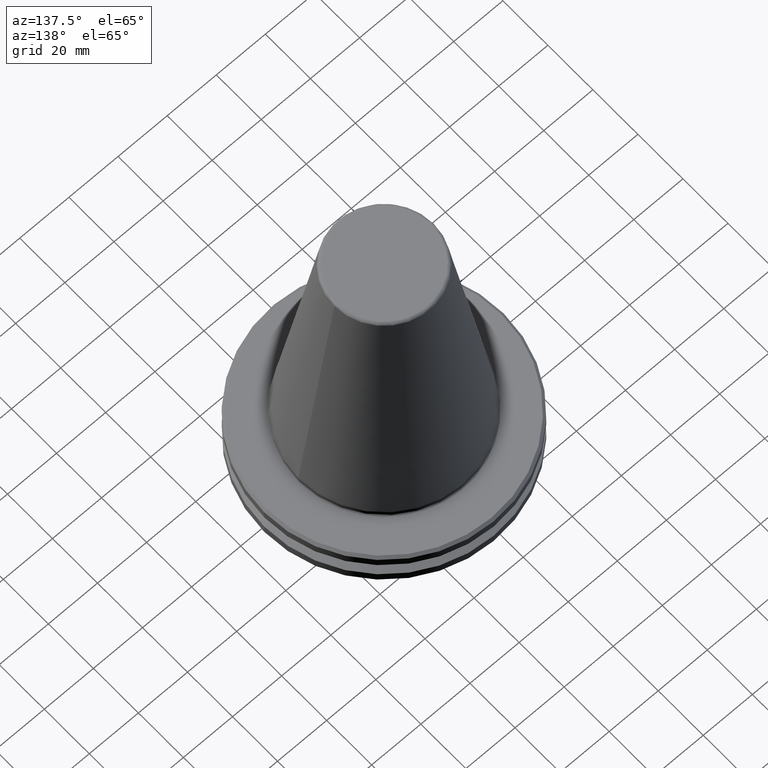
[diagram: clean part render]
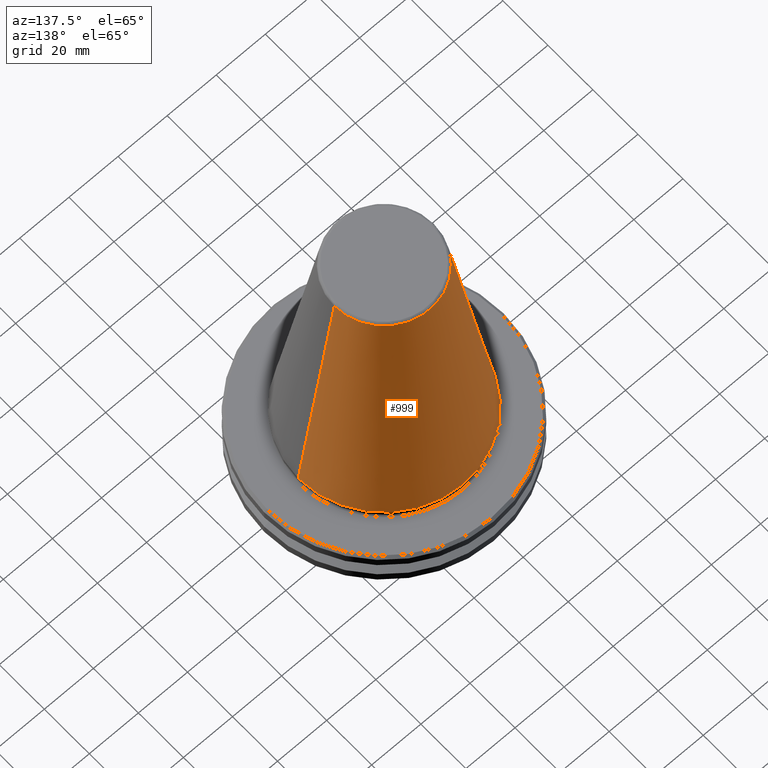
[diagram: same view with one face highlighted and labeled with its STEP entity id]
A machine part, auxiliary view. The second image highlights one B-rep face of the part: STEP entity #999.
In plain terms, the highlighted conical surface has half-angle 8.297 deg.
Its self-contained STEP definition (entity closure, byte-faithful):
#35 = EDGE_CURVE ( 'NONE', #173, #57, #1499, .T. ) ;
#57 = VERTEX_POINT ( 'NONE', #593 ) ;
#149 = VECTOR ( 'NONE', #569, 1000.000000000000000 ) ;
#153 = CARTESIAN_POINT ( 'NONE',  ( -34.92500000000000400, 4.277078946022131700E-015, 0.0000000000000000000 ) ) ;
#173 = VERTEX_POINT ( 'NONE', #448 ) ;
#268 = ORIENTED_EDGE ( 'NONE', *, *, #652, .F. ) ;
#347 = CARTESIAN_POINT ( 'NONE',  ( -20.21110778703758000, 0.0000000000000000000, 100.8943082272673000 ) ) ;
#364 = CONICAL_SURFACE ( 'NONE', #1370, 34.92499999999999700, 0.1448138465474189400 ) ;
#410 = VERTEX_POINT ( 'NONE', #347 ) ;
#440 = AXIS2_PLACEMENT_3D ( 'NONE', #611, #1473, #768 ) ;
#444 = VECTOR ( 'NONE', #589, 1000.000000000000000 ) ;
#448 = CARTESIAN_POINT ( 'NONE',  ( 20.21110778703758000, 3.376112895941951000E-015, 100.8943082272673000 ) ) ;
#483 = EDGE_LOOP ( 'NONE', ( #930, #979, #1294, #268 ) ) ;
#491 = AXIS2_PLACEMENT_3D ( 'NONE', #1510, #1490, #934 ) ;
#535 = CARTESIAN_POINT ( 'NONE',  ( 34.92499999999999700, 4.277078946022130900E-015, -1.387778780781445700E-014 ) ) ;
#558 = CARTESIAN_POINT ( 'NONE',  ( -34.92499999999999700, 0.0000000000000000000, -1.387778780781445700E-014 ) ) ;
#562 = CIRCLE ( 'NONE', #440, 34.92499999999999700 ) ;
#569 = DIRECTION ( 'NONE',  ( -0.1443082272673069400, 0.0000000000000000000, -0.9895327864921743500 ) ) ;
#589 = DIRECTION ( 'NONE',  ( 0.1443082272673069400, 1.767266086135362400E-017, -0.9895327864921743500 ) ) ;
#593 = CARTESIAN_POINT ( 'NONE',  ( 34.92500000000000400, 0.0000000000000000000, 0.0000000000000000000 ) ) ;
#611 = CARTESIAN_POINT ( 'NONE',  ( 0.0000000000000000000, 0.0000000000000000000, 0.0000000000000000000 ) ) ;
#652 = EDGE_CURVE ( 'NONE', #410, #782, #1495, .T. ) ;
#768 = DIRECTION ( 'NONE',  ( -1.000000000000000000, 0.0000000000000000000, 0.0000000000000000000 ) ) ;
#782 = VERTEX_POINT ( 'NONE', #153 ) ;
#814 = EDGE_CURVE ( 'NONE', #57, #782, #562, .T. ) ;
#818 = EDGE_CURVE ( 'NONE', #410, #173, #894, .T. ) ;
#894 = CIRCLE ( 'NONE', #491, 20.21110778703758000 ) ;
#930 = ORIENTED_EDGE ( 'NONE', *, *, #818, .T. ) ;
#934 = DIRECTION ( 'NONE',  ( -1.000000000000000000, 0.0000000000000000000, 0.0000000000000000000 ) ) ;
#979 = ORIENTED_EDGE ( 'NONE', *, *, #35, .T. ) ;
#993 = DIRECTION ( 'NONE',  ( -1.000000000000000000, 0.0000000000000000000, 0.0000000000000000000 ) ) ;
#999 = ADVANCED_FACE ( 'NONE', ( #1052 ), #364, .T. ) ;
#1052 = FACE_OUTER_BOUND ( 'NONE', #483, .T. ) ;
#1139 = CARTESIAN_POINT ( 'NONE',  ( 0.0000000000000000000, 0.0000000000000000000, -1.387778780781445700E-014 ) ) ;
#1176 = DIRECTION ( 'NONE',  ( 0.0000000000000000000, 0.0000000000000000000, -1.000000000000000000 ) ) ;
#1294 = ORIENTED_EDGE ( 'NONE', *, *, #814, .T. ) ;
#1370 = AXIS2_PLACEMENT_3D ( 'NONE', #1139, #1176, #993 ) ;
#1473 = DIRECTION ( 'NONE',  ( -0.0000000000000000000, -0.0000000000000000000, 1.000000000000000000 ) ) ;
#1490 = DIRECTION ( 'NONE',  ( 0.0000000000000000000, 0.0000000000000000000, -1.000000000000000000 ) ) ;
#1495 = LINE ( 'NONE', #558, #149 ) ;
#1499 = LINE ( 'NONE', #535, #444 ) ;
#1510 = CARTESIAN_POINT ( 'NONE',  ( 0.0000000000000000000, 0.0000000000000000000, 100.8943082272673000 ) ) ;